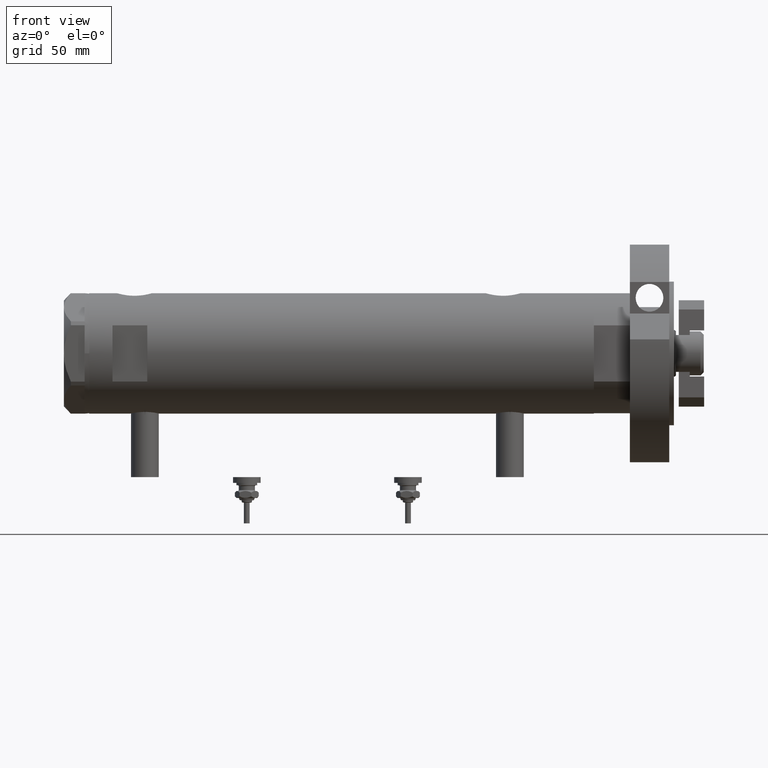
[diagram: clean part render]
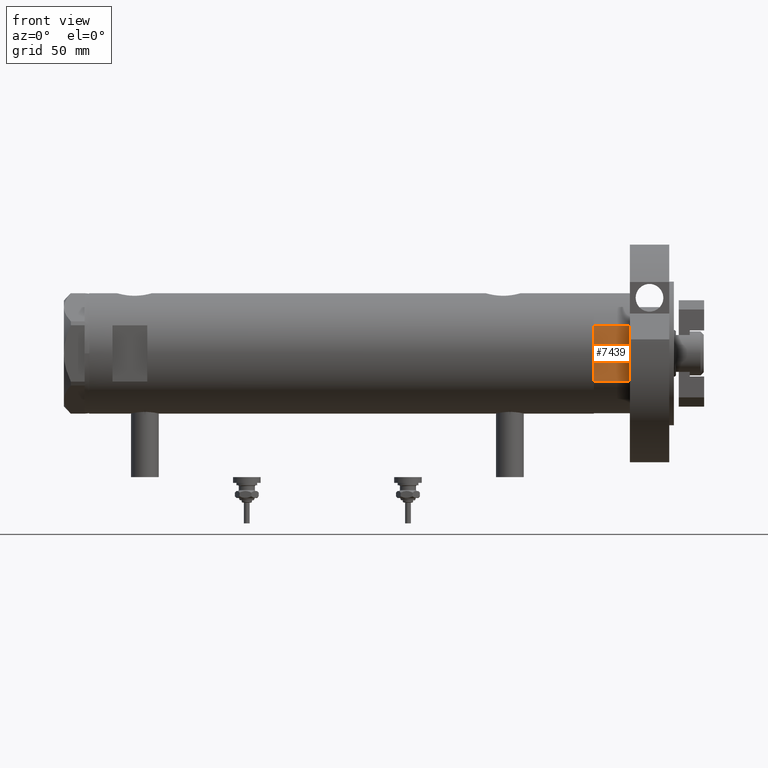
[diagram: same view with one face highlighted and labeled with its STEP entity id]
A machine part, front view. The second image highlights one B-rep face of the part: STEP entity #7439.
In plain terms, the highlighted planar face has unit normal (-0, 1, 0).
Its self-contained STEP definition (entity closure, byte-faithful):
#27 = ORIENTED_EDGE ( 'NONE', *, *, #8528, .T. ) ;
#50 = EDGE_CURVE ( 'NONE', #8131, #5504, #3410, .T. ) ;
#106 = CARTESIAN_POINT ( 'NONE',  ( -12.12435565298215323, -22.99999999999999645, 15.50000000000000000 ) ) ;
#644 = CARTESIAN_POINT ( 'NONE',  ( -12.12435565298215145, -22.99999999999999645, 0.000000000000000000 ) ) ;
#867 = VERTEX_POINT ( 'NONE', #106 ) ;
#899 = VERTEX_POINT ( 'NONE', #6884 ) ;
#1414 = EDGE_CURVE ( 'NONE', #8131, #899, #6025, .T. ) ;
#1462 = LINE ( 'NONE', #4149, #5698 ) ;
#1604 = CARTESIAN_POINT ( 'NONE',  ( 12.12435565298215323, -22.99999999999999645, 0.000000000000000000 ) ) ;
#1929 = DIRECTION ( 'NONE',  ( -1.000000000000000000, -0.000000000000000000, -0.000000000000000000 ) ) ;
#1975 = DIRECTION ( 'NONE',  ( -0.000000000000000000, 1.000000000000000000, 0.000000000000000000 ) ) ;
#2124 = CARTESIAN_POINT ( 'NONE',  ( 12.12435565298215323, -22.99999999999999645, 15.50000000000000000 ) ) ;
#2439 = CARTESIAN_POINT ( 'NONE',  ( -12.12435565298215145, -22.99999999999999645, 15.50000000000000000 ) ) ;
#3166 = EDGE_CURVE ( 'NONE', #899, #867, #1462, .T. ) ;
#3333 = DIRECTION ( 'NONE',  ( 0.000000000000000000, -0.000000000000000000, 1.000000000000000000 ) ) ;
#3376 = FACE_OUTER_BOUND ( 'NONE', #3529, .T. ) ;
#3410 = LINE ( 'NONE', #6730, #6656 ) ;
#3529 = EDGE_LOOP ( 'NONE', ( #27, #6735, #7710, #4272 ) ) ;
#3556 = DIRECTION ( 'NONE',  ( -0.000000000000000000, -0.000000000000000000, 1.000000000000000000 ) ) ;
#4149 = CARTESIAN_POINT ( 'NONE',  ( -12.12435565298215145, -22.99999999999999645, 0.000000000000000000 ) ) ;
#4272 = ORIENTED_EDGE ( 'NONE', *, *, #50, .T. ) ;
#5105 = VECTOR ( 'NONE', #1929, 1000.000000000000000 ) ;
#5273 = CARTESIAN_POINT ( 'NONE',  ( -12.12435565298215145, -22.99999999999999645, 0.000000000000000000 ) ) ;
#5504 = VERTEX_POINT ( 'NONE', #2124 ) ;
#5698 = VECTOR ( 'NONE', #3556, 1000.000000000000000 ) ;
#5874 = LINE ( 'NONE', #2439, #7513 ) ;
#6025 = LINE ( 'NONE', #5273, #5105 ) ;
#6063 = DIRECTION ( 'NONE',  ( -0.000000000000000000, -0.000000000000000000, 1.000000000000000000 ) ) ;
#6528 = AXIS2_PLACEMENT_3D ( 'NONE', #644, #1975, #3333 ) ;
#6656 = VECTOR ( 'NONE', #6063, 1000.000000000000000 ) ;
#6730 = CARTESIAN_POINT ( 'NONE',  ( 12.12435565298215323, -22.99999999999999645, 0.000000000000000000 ) ) ;
#6735 = ORIENTED_EDGE ( 'NONE', *, *, #3166, .F. ) ;
#6884 = CARTESIAN_POINT ( 'NONE',  ( -12.12435565298215501, -22.99999999999999645, 0.000000000000000000 ) ) ;
#7439 = ADVANCED_FACE ( 'NONE', ( #3376 ), #7995, .F. ) ;
#7513 = VECTOR ( 'NONE', #7804, 1000.000000000000000 ) ;
#7710 = ORIENTED_EDGE ( 'NONE', *, *, #1414, .F. ) ;
#7804 = DIRECTION ( 'NONE',  ( -1.000000000000000000, -0.000000000000000000, -0.000000000000000000 ) ) ;
#7995 = PLANE ( 'NONE',  #6528 ) ;
#8131 = VERTEX_POINT ( 'NONE', #1604 ) ;
#8528 = EDGE_CURVE ( 'NONE', #5504, #867, #5874, .T. ) ;